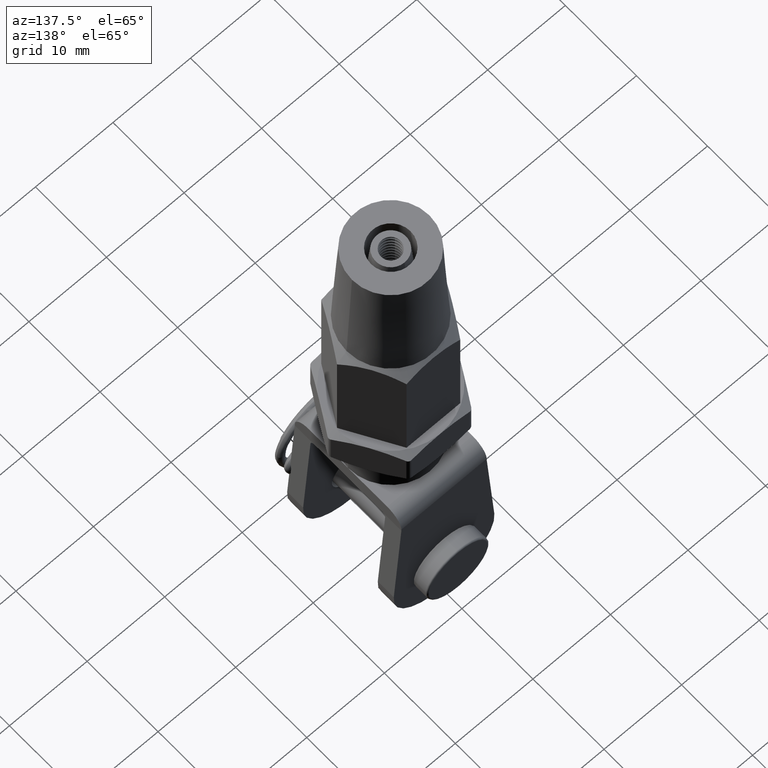
[diagram: clean part render]
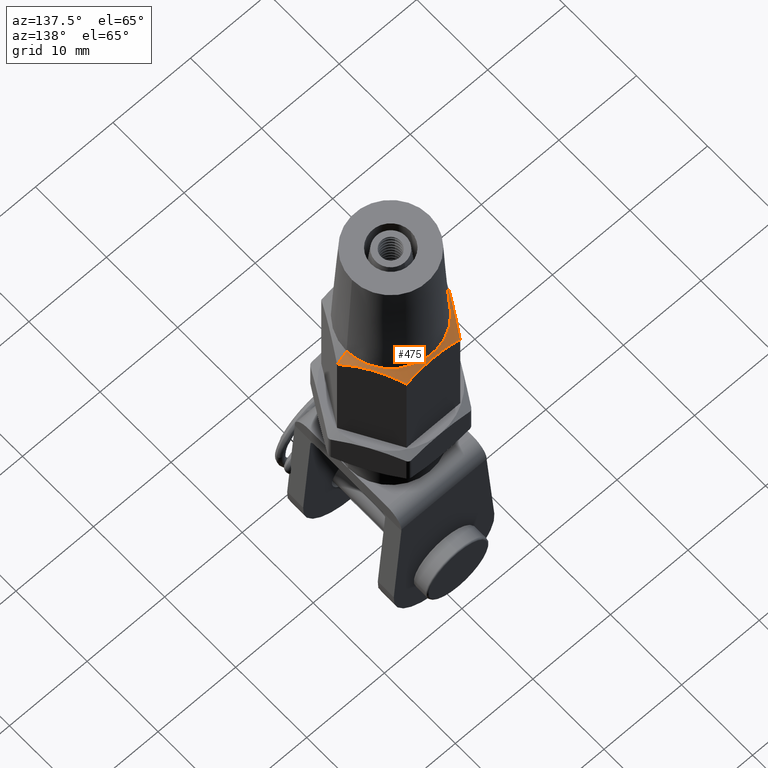
[diagram: same view with one face highlighted and labeled with its STEP entity id]
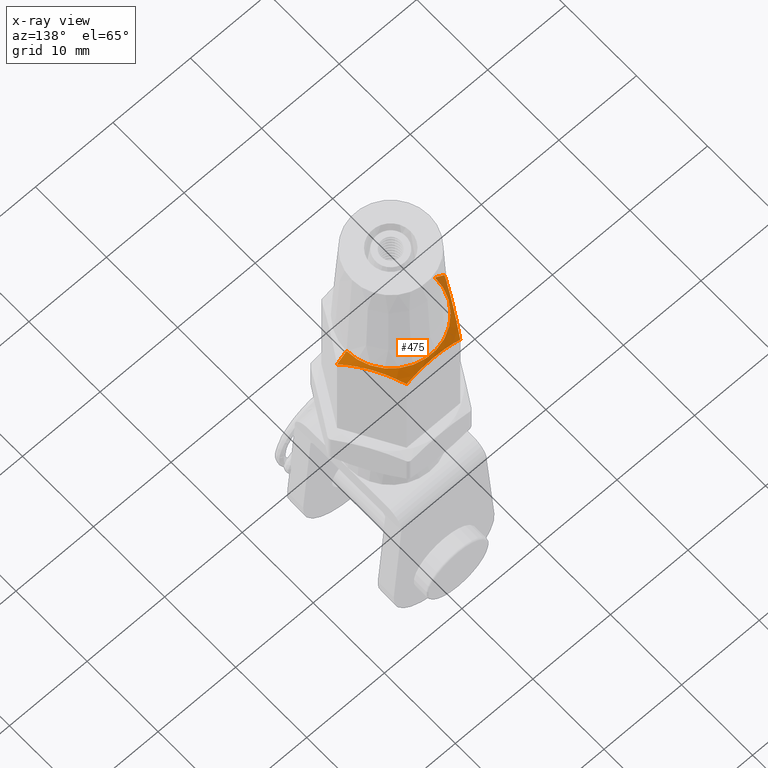
[diagram: x-ray of the same camera — body ghosted, the highlighted face saturated]
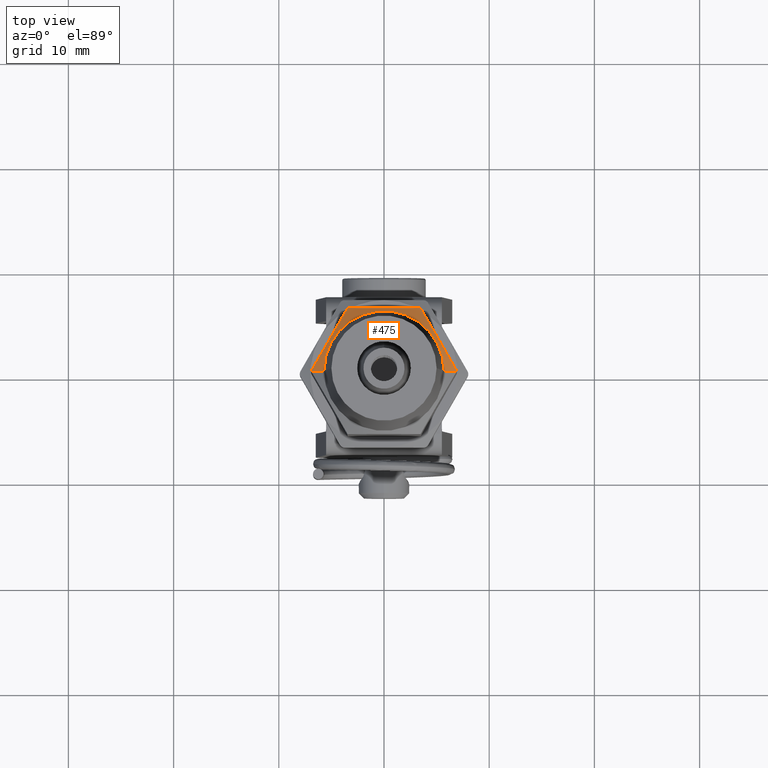
[diagram: same view with one face highlighted and labeled with its STEP entity id]
A machine part, auxiliary view. The second image highlights one B-rep face of the part: STEP entity #475.
The next image is the same camera in x-ray: the body ghosted, the highlighted face saturated — about 7% of this face is hidden behind the body in this view.
A second angle (top view) of the same face is appended — the face is thin or edge-on in the first view.
In plain terms, the highlighted conical surface has half-angle 45 deg.
Its self-contained STEP definition (entity closure, byte-faithful):
#183 = CARTESIAN_POINT ( 'NONE',  ( 6.928203230275510500, -3.691714887813284000E-015, 14.27179676972450300 ) ) ;
#288 = CARTESIAN_POINT ( 'NONE',  ( 1.710283705059582600E-016, 0.0000000000000000000, 12.50000000000003200 ) ) ;
#332 = CARTESIAN_POINT ( 'NONE',  ( 6.655950479807178700, -0.4715555963115276000, 14.54404952019297600 ) ) ;
#475 = ADVANCED_FACE ( 'NONE', ( #2209 ), #13024, .T. ) ;
#521 = CARTESIAN_POINT ( 'NONE',  ( -6.380780532024010300, -0.9481639265880405000, 14.77258222210695500 ) ) ;
#663 = VERTEX_POINT ( 'NONE', #6235 ) ;
#805 = VERTEX_POINT ( 'NONE', #17836 ) ;
#1300 = ORIENTED_EDGE ( 'NONE', *, *, #9108, .T. ) ;
#1342 = B_SPLINE_CURVE_WITH_KNOTS ( 'NONE', 3,
 ( #19975, #16637, #3987, #2070, #18368, #9066, #18529, #16557, #14797, #20053, #332, #9144 ),
 .UNSPECIFIED., .F., .F.,
 ( 4, 2, 2, 2, 2, 4 ),
 ( 2.544318454846096800E-007, 0.001789393450227737300, 0.002683962959418864500, 0.003578532468609992100, 0.005367671486992247000, 0.007156810505374501400 ),
 .UNSPECIFIED. ) ;
#1691 = CARTESIAN_POINT ( 'NONE',  ( -2.071907353688686300, -6.000000000000001800, 14.85839155864833700 ) ) ;
#2070 = CARTESIAN_POINT ( 'NONE',  ( 4.441519588067027500, -4.307062410655530200, 15.01918582013875900 ) ) ;
#2076 = CARTESIAN_POINT ( 'NONE',  ( 3.464101615137759700, -6.000000000000000000, 14.27179676972450100 ) ) ;
#2209 = FACE_OUTER_BOUND ( 'NONE', #9781, .T. ) ;
#2262 = CARTESIAN_POINT ( 'NONE',  ( -3.464101615137752200, -6.000000000000000900, 14.27179676972450500 ) ) ;
#2879 = CARTESIAN_POINT ( 'NONE',  ( -0.6063290578192448400, -6.000000000000002700, 15.17661005153396800 ) ) ;
#3526 = CARTESIAN_POINT ( 'NONE',  ( -1.493692137275554300, -6.000000000000002700, 15.02308218104593600 ) ) ;
#3847 = B_SPLINE_CURVE_WITH_KNOTS ( 'NONE', 3,
 ( #23430, #21513, #16177, #5273, #1691, #3526, #16254, #2879, #7165, #15601, #17448, #12962, #7240, #19981, #9310, #2076 ),
 .UNSPECIFIED., .F., .F.,
 ( 4, 2, 2, 2, 2, 2, 2, 4 ),
 ( 0.004485089036792999500, 0.005382946500275084800, 0.006280803963757171000, 0.007178661427239255500, 0.008076518890721340000, 0.009872233817685507200, 0.01077009128116759200, 0.01166794874464967400 ),
 .UNSPECIFIED. ) ;
#3978 = CIRCLE ( 'NONE', #16620, 5.700000000000000200 ) ;
#3987 = CARTESIAN_POINT ( 'NONE',  ( 4.011524313389258200, -5.051836073411960700, 14.77258222210695800 ) ) ;
#5273 = CARTESIAN_POINT ( 'NONE',  ( -2.357975660975497200, -6.000000000000001800, 14.75844710262569100 ) ) ;
#5445 = DIRECTION ( 'NONE',  ( 0.7071067811865511300, 8.659560562354978500E-017, -0.7071067811865440200 ) ) ;
#6235 = CARTESIAN_POINT ( 'NONE',  ( -5.700000000000000200, 0.0000000000000000000, 15.50000000000000000 ) ) ;
#6788 = DIRECTION ( 'NONE',  ( -1.000000000000000000, 0.0000000000000000000, 0.0000000000000000000 ) ) ;
#7165 = CARTESIAN_POINT ( 'NONE',  ( -0.3027272628657048400, -6.000000000000000900, 15.20008672277390700 ) ) ;
#7172 = ORIENTED_EDGE ( 'NONE', *, *, #20950, .T. ) ;
#7184 = VECTOR ( 'NONE', #5445, 999.9999999999998900 ) ;
#7240 = CARTESIAN_POINT ( 'NONE',  ( 2.362755009573998400, -6.000000000000000000, 14.75663937532441800 ) ) ;
#7503 = EDGE_CURVE ( 'NONE', #16271, #19541, #12598, .T. ) ;
#7735 = DIRECTION ( 'NONE',  ( -1.000000000000000000, 0.0000000000000000000, 0.0000000000000000000 ) ) ;
#7898 = CARTESIAN_POINT ( 'NONE',  ( -5.804952491565107800, -1.945527349085686400, 15.08478265873393000 ) ) ;
#8935 = LINE ( 'NONE', #14255, #14042 ) ;
#9066 = CARTESIAN_POINT ( 'NONE',  ( 4.885183810457614400, -3.538613435974493600, 15.17504033650271800 ) ) ;
#9108 = EDGE_CURVE ( 'NONE', #16271, #663, #3978, .T. ) ;
#9144 = CARTESIAN_POINT ( 'NONE',  ( 6.928203230275510500, -3.691714887813284000E-015, 14.27179676972450300 ) ) ;
#9179 = CARTESIAN_POINT ( 'NONE',  ( 8.699999999999999300, 1.065442715258197200E-015, 12.50000000000003200 ) ) ;
#9310 = CARTESIAN_POINT ( 'NONE',  ( 3.196127748210961400, -6.000000000000000000, 14.40578370318790000 ) ) ;
#9573 = CARTESIAN_POINT ( 'NONE',  ( -5.507121034955653200, -2.461386564025508600, 15.17504033650272000 ) ) ;
#9653 = CARTESIAN_POINT ( 'NONE',  ( -4.016677580145141300, -5.042910353565806000, 14.77749258358325500 ) ) ;
#9781 = EDGE_LOOP ( 'NONE', ( #21437, #1300, #10401, #9897, #7172, #20514 ) ) ;
#9897 = ORIENTED_EDGE ( 'NONE', *, *, #11904, .T. ) ;
#10401 = ORIENTED_EDGE ( 'NONE', *, *, #18148, .T. ) ;
#10689 = CARTESIAN_POINT ( 'NONE',  ( 2.120751794273876800E-016, 0.0000000000000000000, 15.50000000000000000 ) ) ;
#10935 = CARTESIAN_POINT ( 'NONE',  ( -6.928203230275508800, -9.236279429656728300E-016, 14.27179676972450500 ) ) ;
#11016 = CARTESIAN_POINT ( 'NONE',  ( -3.464101615137752200, -6.000000000000000900, 14.27179676972450500 ) ) ;
#11048 = CARTESIAN_POINT ( 'NONE',  ( 5.700000000000000200, 6.980486755139913100E-016, 15.50000000000000000 ) ) ;
#11324 = CARTESIAN_POINT ( 'NONE',  ( -5.353732648347456500, -2.727063042921920500, 15.19934366704098700 ) ) ;
#11407 = CARTESIAN_POINT ( 'NONE',  ( -4.602878200547303700, -4.027581095600864600, 15.10969170667844200 ) ) ;
#11846 = VERTEX_POINT ( 'NONE', #10935 ) ;
#11904 = EDGE_CURVE ( 'NONE', #11846, #15149, #20309, .T. ) ;
#12598 = LINE ( 'NONE', #9179, #7184 ) ;
#12687 = CARTESIAN_POINT ( 'NONE',  ( -6.657544429062391500, -0.4687947952168072300, 14.54245557093762500 ) ) ;
#12906 = DIRECTION ( 'NONE',  ( -1.368226964047662500E-017, -0.0000000000000000000, -1.000000000000000000 ) ) ;
#12962 = CARTESIAN_POINT ( 'NONE',  ( 2.074226169108895200, -6.000000000000000000, 14.85768193822204900 ) ) ;
#13024 = CONICAL_SURFACE ( 'NONE', #20655, 8.699999999999999300, 0.7853981633974533900 ) ;
#14042 = VECTOR ( 'NONE', #17927, 999.9999999999998900 ) ;
#14255 = CARTESIAN_POINT ( 'NONE',  ( -8.699999999999999300, 0.0000000000000000000, 12.50000000000003200 ) ) ;
#14797 = CARTESIAN_POINT ( 'NONE',  ( 5.789426644865963900, -1.972418904399140200, 15.10969170667843600 ) ) ;
#14911 = CARTESIAN_POINT ( 'NONE',  ( -4.900121892185590700, -3.512739919454008300, 15.20127200442304400 ) ) ;
#15149 = VERTEX_POINT ( 'NONE', #11016 ) ;
#15601 = CARTESIAN_POINT ( 'NONE',  ( 0.6105964590987390500, -6.000000000000000000, 15.19982582002226400 ) ) ;
#16134 = EDGE_CURVE ( 'NONE', #805, #19541, #1342, .T. ) ;
#16177 = CARTESIAN_POINT ( 'NONE',  ( -2.921199653605743900, -6.000000000000001800, 14.53164473590790400 ) ) ;
#16254 = CARTESIAN_POINT ( 'NONE',  ( -1.200864899757489800, -6.000000000000001800, 15.08807165843747600 ) ) ;
#16271 = VERTEX_POINT ( 'NONE', #11048 ) ;
#16557 = CARTESIAN_POINT ( 'NONE',  ( 5.492182953227673400, -2.487260080545994800, 15.20127200442304600 ) ) ;
#16620 = AXIS2_PLACEMENT_3D ( 'NONE', #10689, #23287, #6788 ) ;
#16637 = CARTESIAN_POINT ( 'NONE',  ( 3.734760416350877000, -5.531205204783195700, 14.54245557093761800 ) ) ;
#16680 = CARTESIAN_POINT ( 'NONE',  ( -6.928203230275508800, -9.236279429656728300E-016, 14.27179676972450500 ) ) ;
#16835 = CARTESIAN_POINT ( 'NONE',  ( -3.736354365606085800, -5.528444403688474100, 14.54404952019297600 ) ) ;
#17448 = CARTESIAN_POINT ( 'NONE',  ( 1.203401367263129900, -6.000000000000000000, 15.10586251916764600 ) ) ;
#17836 = CARTESIAN_POINT ( 'NONE',  ( 3.464101615137759700, -6.000000000000000000, 14.27179676972450100 ) ) ;
#17927 = DIRECTION ( 'NONE',  ( -0.7071067811865511300, 0.0000000000000000000, -0.7071067811865440200 ) ) ;
#18148 = EDGE_CURVE ( 'NONE', #663, #11846, #8935, .T. ) ;
#18368 = CARTESIAN_POINT ( 'NONE',  ( 4.587352353848158000, -4.054472650914316700, 15.08478265873393000 ) ) ;
#18529 = CARTESIAN_POINT ( 'NONE',  ( 5.038572197065808400, -3.272936957078081700, 15.19934366704098000 ) ) ;
#18809 = CARTESIAN_POINT ( 'NONE',  ( -5.950785257346240100, -1.692937589344473100, 15.01918582013875400 ) ) ;
#19541 = VERTEX_POINT ( 'NONE', #183 ) ;
#19975 = CARTESIAN_POINT ( 'NONE',  ( 3.464101615137759700, -6.000000000000000000, 14.27179676972450100 ) ) ;
#19981 = CARTESIAN_POINT ( 'NONE',  ( 2.922987921895202400, -6.000000000000000900, 14.53080639837936200 ) ) ;
#20053 = CARTESIAN_POINT ( 'NONE',  ( 6.375627265268124500, -0.9570896464341993600, 14.77749258358325000 ) ) ;
#20309 = B_SPLINE_CURVE_WITH_KNOTS ( 'NONE', 3,
 ( #16680, #12687, #521, #18809, #7898, #9573, #11324, #14911, #11407, #9653, #16835, #2262 ),
 .UNSPECIFIED., .F., .F.,
 ( 4, 2, 2, 2, 2, 4 ),
 ( 2.544318454850188500E-007, 0.001789393450227742700, 0.002683962959418870500, 0.003578532468609998200, 0.005367671486992253900, 0.007156810505374509200 ),
 .UNSPECIFIED. ) ;
#20514 = ORIENTED_EDGE ( 'NONE', *, *, #16134, .T. ) ;
#20655 = AXIS2_PLACEMENT_3D ( 'NONE', #288, #12906, #7735 ) ;
#20950 = EDGE_CURVE ( 'NONE', #15149, #805, #3847, .T. ) ;
#21437 = ORIENTED_EDGE ( 'NONE', *, *, #7503, .F. ) ;
#21513 = CARTESIAN_POINT ( 'NONE',  ( -3.195379346434716000, -6.000000000000001800, 14.40615790407603400 ) ) ;
#23287 = DIRECTION ( 'NONE',  ( -1.368226964047662500E-017, -0.0000000000000000000, -1.000000000000000000 ) ) ;
#23430 = CARTESIAN_POINT ( 'NONE',  ( -3.464101615137752200, -6.000000000000000900, 14.27179676972450500 ) ) ;